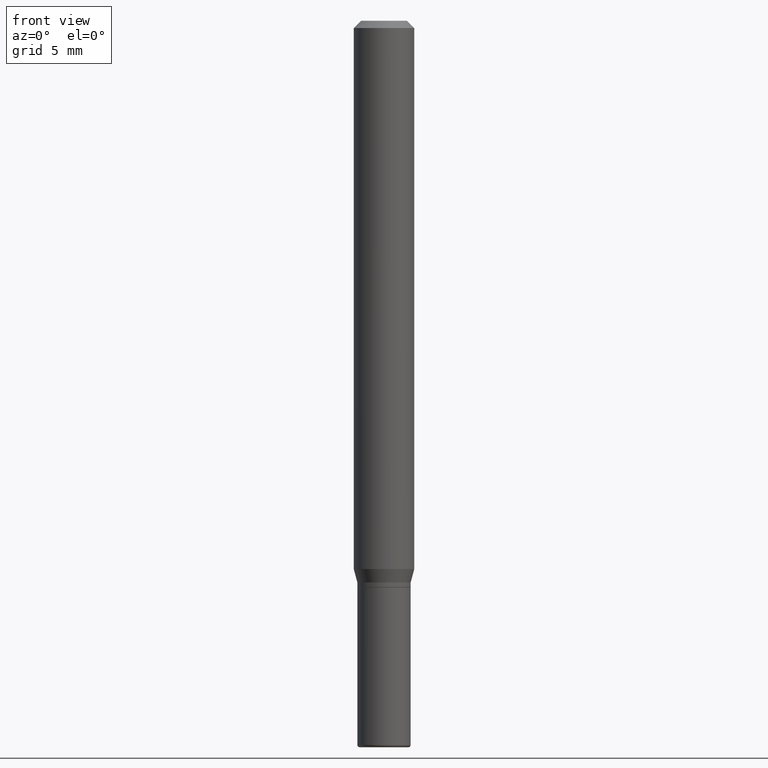
[diagram: clean part render]
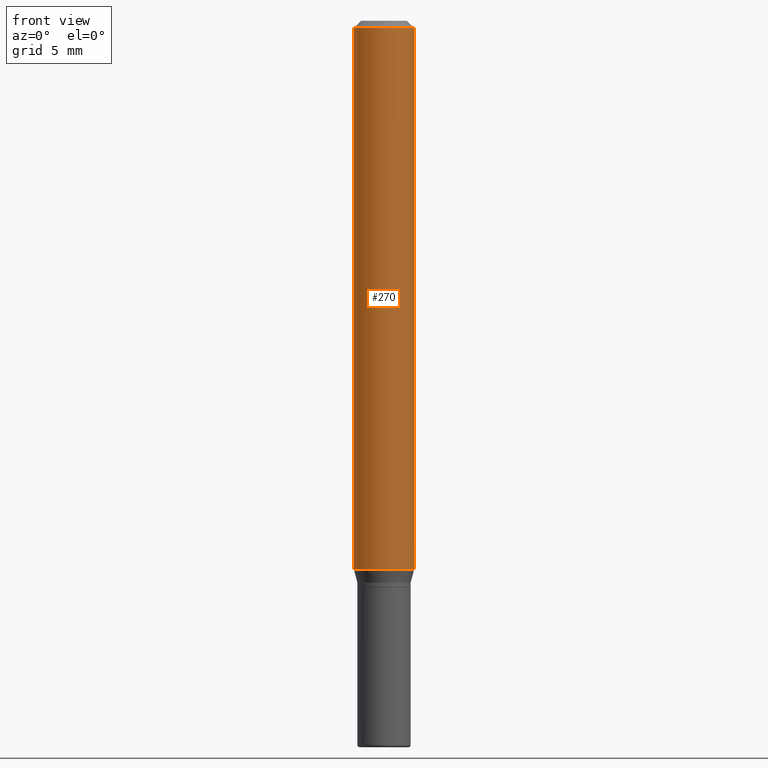
[diagram: same view with one face highlighted and labeled with its STEP entity id]
A machine part, front view. The second image highlights one B-rep face of the part: STEP entity #270.
In plain terms, the highlighted cylindrical surface (edge-blend (fillet) strip) has radius 1.5875 mm, axis along (-0, 0, 1).
Its self-contained STEP definition (entity closure, byte-faithful):
#13 = EDGE_CURVE ( 'NONE', #53, #506, #134, .T. ) ;
#30 = AXIS2_PLACEMENT_3D ( 'NONE', #370, #206, #378 ) ;
#53 = VERTEX_POINT ( 'NONE', #188 ) ;
#65 = ORIENTED_EDGE ( 'NONE', *, *, #13, .T. ) ;
#68 = DIRECTION ( 'NONE',  ( 1.000000000000000000, -6.982962677686262766E-15, 0.000000000000000000 ) ) ;
#90 = ORIENTED_EDGE ( 'NONE', *, *, #232, .T. ) ;
#104 = DIRECTION ( 'NONE',  ( -2.445468806185136597E-29, 3.491481338843145583E-15, 1.000000000000000000 ) ) ;
#119 = VERTEX_POINT ( 'NONE', #245 ) ;
#132 = EDGE_CURVE ( 'NONE', #53, #237, #196, .T. ) ;
#134 = CIRCLE ( 'NONE', #395, 0.06250000000000000000 ) ;
#176 = DIRECTION ( 'NONE',  ( -2.445468806185136597E-29, 3.491481338843145583E-15, 1.000000000000000000 ) ) ;
#178 = EDGE_CURVE ( 'NONE', #237, #119, #386, .T. ) ;
#183 = CARTESIAN_POINT ( 'NONE',  ( 2.768294211427202327E-29, -3.952390459931242324E-15, -1.132009618943234264 ) ) ;
#188 = CARTESIAN_POINT ( 'NONE',  ( -0.06250000000000000000, -3.508301250081179708E-15, -1.132009618943234264 ) ) ;
#196 = LINE ( 'NONE', #475, #223 ) ;
#206 = DIRECTION ( 'NONE',  ( -2.445468806185136597E-29, 3.491481338843145583E-15, 1.000000000000000000 ) ) ;
#223 = VECTOR ( 'NONE', #249, 39.37007874015748143 ) ;
#232 = EDGE_CURVE ( 'NONE', #506, #119, #425, .T. ) ;
#237 = VERTEX_POINT ( 'NONE', #282 ) ;
#245 = CARTESIAN_POINT ( 'NONE',  ( 0.06250000000000000000, -4.888073874380378612E-16, -0.01499999999999970281 ) ) ;
#249 = DIRECTION ( 'NONE',  ( -2.445468806185136877E-29, 3.491481338843145188E-15, 1.000000000000000000 ) ) ;
#257 = DIRECTION ( 'NONE',  ( -2.445468806185136877E-29, 3.491481338843145188E-15, 1.000000000000000000 ) ) ;
#270 = ADVANCED_FACE ( 'NONE', ( #293 ), #324, .T. ) ;
#280 = DIRECTION ( 'NONE',  ( 1.000000000000000000, -6.982962677686266711E-15, 0.000000000000000000 ) ) ;
#282 = CARTESIAN_POINT ( 'NONE',  ( -0.06250000000000000000, -1.558292130156881494E-15, -0.01499999999999970281 ) ) ;
#293 = FACE_OUTER_BOUND ( 'NONE', #507, .T. ) ;
#298 = CARTESIAN_POINT ( 'NONE',  ( 3.668203209277632395E-31, -5.237222008264614861E-17, -0.01499999999999970281 ) ) ;
#305 = AXIS2_PLACEMENT_3D ( 'NONE', #298, #104, #280 ) ;
#324 = CYLINDRICAL_SURFACE ( 'NONE', #30, 0.06250000000000000000 ) ;
#337 = ORIENTED_EDGE ( 'NONE', *, *, #132, .F. ) ;
#338 = CARTESIAN_POINT ( 'NONE',  ( 0.06250000000000000000, -4.364351673553916694E-16, 3.047610484872459871E-30 ) ) ;
#370 = CARTESIAN_POINT ( 'NONE',  ( 0.000000000000000000, 0.000000000000000000, 0.000000000000000000 ) ) ;
#378 = DIRECTION ( 'NONE',  ( 1.000000000000000000, -6.982962677686266711E-15, 4.876176775795935793E-29 ) ) ;
#386 = CIRCLE ( 'NONE', #305, 0.06250000000000000000 ) ;
#395 = AXIS2_PLACEMENT_3D ( 'NONE', #183, #176, #68 ) ;
#411 = VECTOR ( 'NONE', #257, 39.37007874015748143 ) ;
#425 = LINE ( 'NONE', #338, #411 ) ;
#443 = CARTESIAN_POINT ( 'NONE',  ( 0.06250000000000000000, -4.388825627286634782E-15, -1.132009618943234264 ) ) ;
#475 = CARTESIAN_POINT ( 'NONE',  ( -0.06250000000000000000, 4.440892098500626162E-16, -3.074334431409316114E-30 ) ) ;
#492 = ORIENTED_EDGE ( 'NONE', *, *, #178, .F. ) ;
#506 = VERTEX_POINT ( 'NONE', #443 ) ;
#507 = EDGE_LOOP ( 'NONE', ( #337, #65, #90, #492 ) ) ;